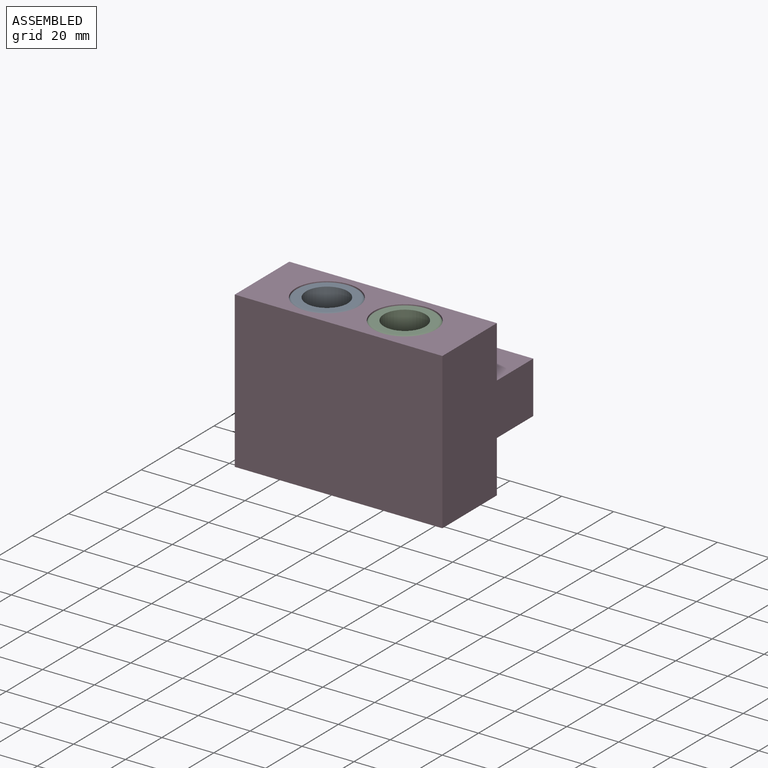
[diagram: assembled view]
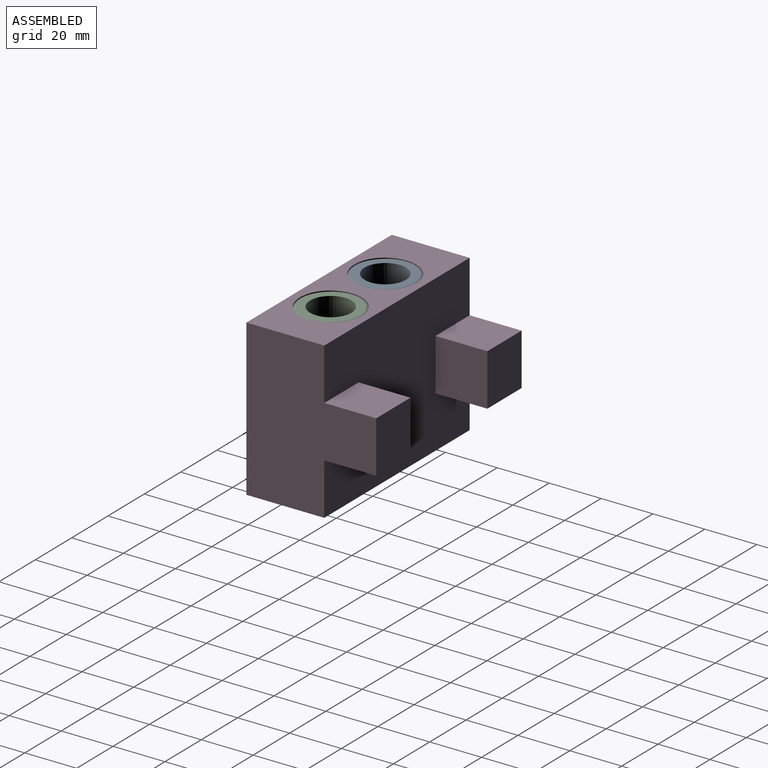
[diagram: assembled view, second angle]
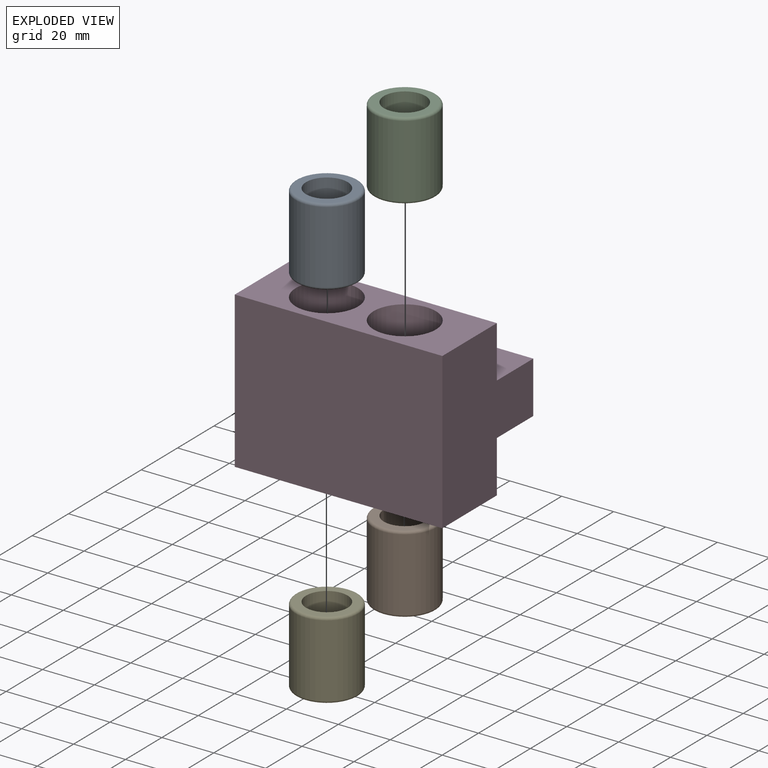
[diagram: exploded view]
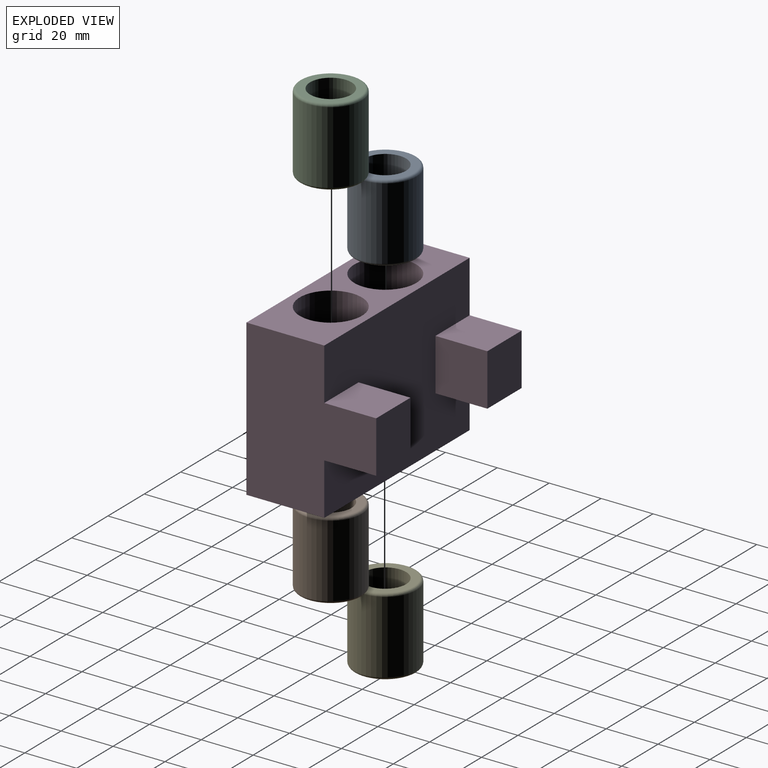
[diagram: exploded view, second angle]
ASSEMBLY  parts=5 mates=8
PART A: 6 faces, bbox 26x30x26 mm
  f0: cylinder r=8mm len=30mm, axis (0,1,0), area 1508mm2, adj f2,f3
  f1: cylinder r=12mm len=28mm, axis (0,1,0), area 2111.2mm2, adj f4,f5
  f2: plane 22x22mm, normal (0,-1,0), area 179.1mm2, adj f0,f5
  f3: plane 22x22mm, normal (0,1,0), area 179.1mm2, adj f0,f4
  f4: torus R=11mm, axis (0,-1,0), area 114.8mm2, adj f1,f3
  f5: torus R=11mm, axis (0,-1,0), area 114.8mm2, adj f1,f2
PART B: same geometry as A
PART C: same geometry as A
PART D: 16 faces, bbox 80x50x60 mm
  f0: plane 80x30mm, normal (0,0,-1), area 1495.2mm2, adj f1,f3,f4,f5,f6,f7
  f1: plane 60x50mm, normal (1,0,0), area 2200mm2, adj f0,f2,f4,f5,f12,f13,f15
  f2: plane 80x30mm, normal (0,0,1), area 1495.2mm2, adj f1,f3,f4,f5,f6,f7
  f3: plane 60x50mm, normal (-1,0,0), area 2200mm2, adj f0,f2,f4,f5,f8,f10,f11
  f4: plane 80x60mm, normal (0,-1,0), area 4800mm2, adj f0,f1,f2,f3
  f5: plane 80x60mm, normal (0,1,0), area 4046.8mm2, adj f0,f1,f2,f3,f8,f9,f10,f12
  f6: cylinder r=12mm len=60mm, axis (0,0,1), area 4523.9mm2, adj f0,f2
  f7: cylinder r=12mm len=60mm, axis (0,0,1), area 4523.9mm2, adj f0,f2
  f8: plane 20x18.83mm, normal (0,0,1), area 376.6mm2, adj f3,f5,f9,f11
  f9: plane 20x20mm, normal (1,0,0), area 400mm2, adj f5,f8,f10,f11
  f10: plane 20x18.83mm, normal (0,0,-1), area 376.6mm2, adj f3,f5,f9,f11
  f11: plane 20x18.83mm, normal (0,1,0), area 376.6mm2, adj f3,f8,f9,f10
  f12: plane 20x18.83mm, normal (0,0,1), area 376.6mm2, adj f1,f5,f14,f15
  f13: plane 20x18.83mm, normal (0,0,-1), area 376.6mm2, adj f1,f5,f14,f15
  f14: plane 20x20mm, normal (-1,0,0), area 400mm2, adj f5,f12,f13,f15
  f15: plane 20x18.83mm, normal (0,1,0), area 376.6mm2, adj f1,f12,f13,f14
PART E: same geometry as A
PLACE A rot(axis=(1,0,0),90deg) t=(-216.54,237.33,532.23)mm
PLACE B rot(axis=(-1,0,0),90deg) t=(-186.54,237.33,472.23)mm
PLACE C rot(axis=(1,0,0),90deg) t=(-186.54,237.33,532.23)mm
PLACE D t=(-201.54,252.33,502.23)mm
PLACE E rot(axis=(-1,0,0),90deg) t=(-216.54,237.33,472.23)mm
MATE cylindrical A.f0 <-> D.f7  axis (0,0,1) through (-216.54,237.33,502.23)mm
MATE cylindrical C.f0 <-> D.f6  axis (0,0,1) through (-186.54,237.33,502.23)mm
MATE planar A.f1 <-> D.f2  axis (0,0,1) through (-216.54,237.33,532.23)mm
MATE planar D.f0 <-> B.f0  axis (0,0,-1) through (-161.54,237.33,472.23)mm
MATE cylindrical E.f1 <-> D.f7  axis (0,0,-1) through (-216.54,237.33,472.23)mm
MATE planar E.f0 <-> D.f0  axis (0,0,-1) through (-216.54,237.33,472.23)mm
MATE planar C.f1 <-> D.f2  axis (0,0,1) through (-186.54,237.33,532.23)mm
MATE cylindrical B.f0 <-> D.f6  axis (0,0,-1) through (-186.54,237.33,472.23)mm
